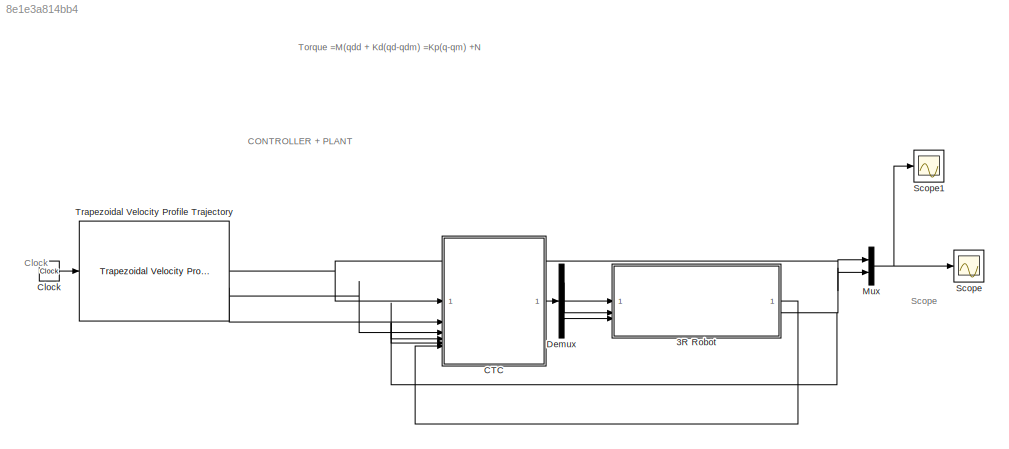
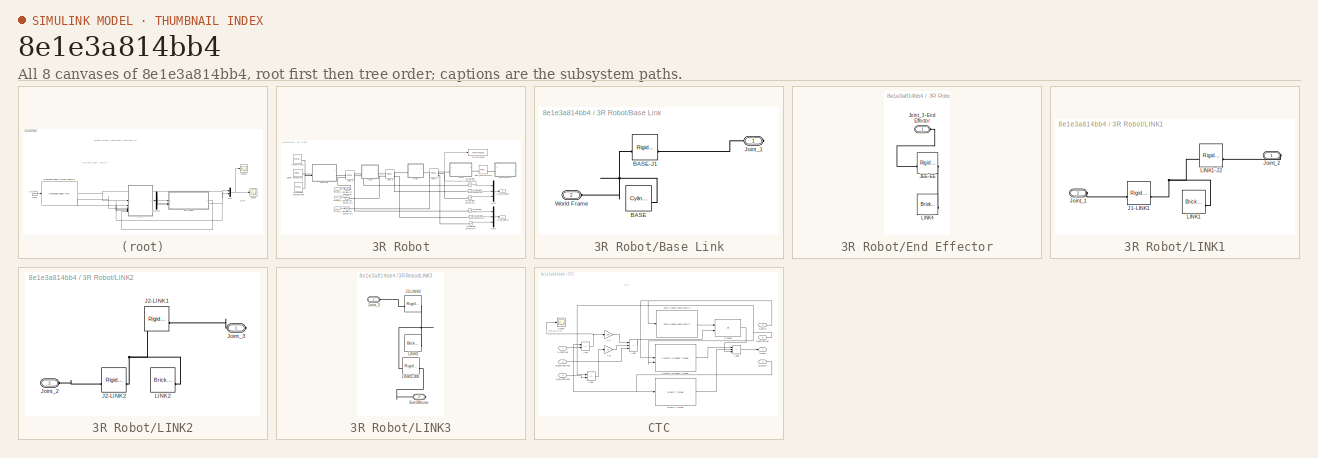
[diagram: thumbnail index - all 8 canvases of the model, root first then tree order]
MODEL slx_8e1e3a814bb4
KIND model
CONFIG AbsTol = auto
CONFIG EnableMultiTasking = off
CONFIG FixedStep = auto
CONFIG MaxStep = auto
CONFIG MinStep = auto
CONFIG RelTol = 1e-3
CONFIG SampleTimeConstraint = Unconstrained
CONFIG SolverName = VariableStepAuto
CONFIG StartTime = 0.0
CONFIG StopTime = 1
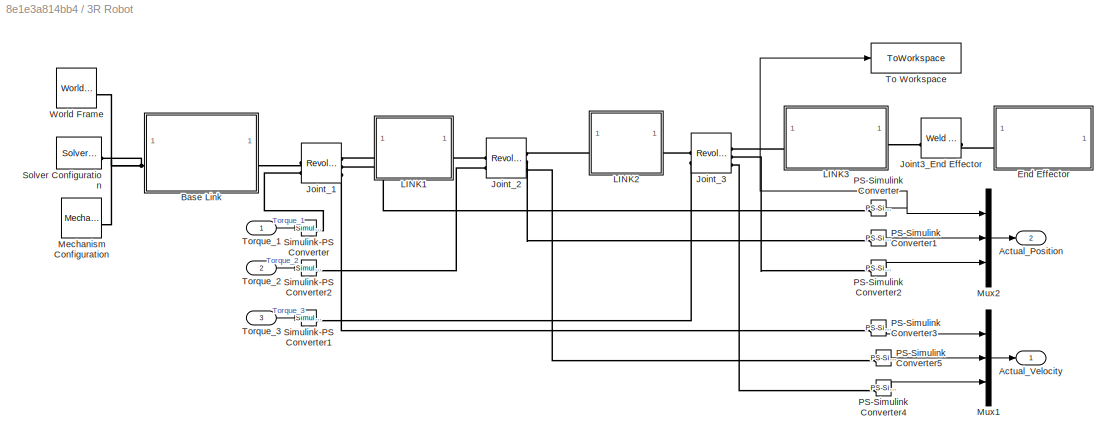
BLOCK [SubSystem] 3R Robot
BLOCK [Outport] 3R Robot/Actual_Position
  Port = 2
BLOCK [Outport] 3R Robot/Actual_Velocity
BLOCK [SubSystem] 3R Robot/Base Link
BLOCK [Reference] 3R Robot/Base Link/BASE  REF=sm_lib/Body Elements/Cylindrical Solid
  SourceBlock = sm_lib/Body Elements/Cylindrical Solid
  SourceType = Cylindrical Solid
BLOCK [Reference] 3R Robot/Base Link/BASE-J1  REF=sm_lib/Frames and
Transforms/Rigid
Transform
  SourceBlock = sm_lib/Frames and\nTransforms/Rigid\nTransform
  SourceType = Rigid\nTransform
BLOCK [PMIOPort] 3R Robot/Base Link/Joint_1
  Side = Right
BLOCK [PMIOPort] 3R Robot/Base Link/World Frame
  Port = 2
  Side = Left
BLOCK [SubSystem] 3R Robot/End Effector
BLOCK [Reference] 3R Robot/End Effector/JEE-EE  REF=sm_lib/Frames and
Transforms/Rigid
Transform
  SourceBlock = sm_lib/Frames and\nTransforms/Rigid\nTransform
  SourceType = Rigid\nTransform
BLOCK [PMIOPort] 3R Robot/End Effector/Joint_3-End Effector
  Side = Left
BLOCK [Reference] 3R Robot/End Effector/LINK4  REF=sm_lib/Body Elements/Brick Solid
  SourceBlock = sm_lib/Body Elements/Brick Solid
  SourceType = Brick Solid
BLOCK [Reference] 3R Robot/Joint3_End Effector  REF=sm_lib/Joints/Weld Joint
  SourceBlock = sm_lib/Joints/Weld Joint
  SourceType = Weld Joint
BLOCK [Reference] 3R Robot/Joint_1  REF=sm_lib/Joints/Revolute Joint
  SourceBlock = sm_lib/Joints/Revolute Joint
  SourceType = Revolute Joint
BLOCK [Reference] 3R Robot/Joint_2  REF=sm_lib/Joints/Revolute Joint
  SourceBlock = sm_lib/Joints/Revolute Joint
  SourceType = Revolute Joint
BLOCK [Reference] 3R Robot/Joint_3  REF=sm_lib/Joints/Revolute Joint
  SourceBlock = sm_lib/Joints/Revolute Joint
  SourceType = Revolute Joint
BLOCK [SubSystem] 3R Robot/LINK1
BLOCK [Reference] 3R Robot/LINK1/J1-LINK1  REF=sm_lib/Frames and
Transforms/Rigid
Transform
  SourceBlock = sm_lib/Frames and\nTransforms/Rigid\nTransform
  SourceType = Rigid\nTransform
BLOCK [PMIOPort] 3R Robot/LINK1/Joint_1
  Port = 2
  Side = Left
BLOCK [PMIOPort] 3R Robot/LINK1/Joint_2
  Side = Right
BLOCK [Reference] 3R Robot/LINK1/LINK1  REF=sm_lib/Body Elements/Brick Solid
  SourceBlock = sm_lib/Body Elements/Brick Solid
  SourceType = Brick Solid
BLOCK [Reference] 3R Robot/LINK1/LINK1-J2  REF=sm_lib/Frames and
Transforms/Rigid
Transform
  NameLocation = top
  SourceBlock = sm_lib/Frames and\nTransforms/Rigid\nTransform
  SourceType = Rigid\nTransform
BLOCK [SubSystem] 3R Robot/LINK2
BLOCK [Reference] 3R Robot/LINK2/J2-LINK1  REF=sm_lib/Frames and
Transforms/Rigid
Transform
  SourceBlock = sm_lib/Frames and\nTransforms/Rigid\nTransform
  SourceType = Rigid\nTransform
BLOCK [Reference] 3R Robot/LINK2/J2-LINK2  REF=sm_lib/Frames and
Transforms/Rigid
Transform
  SourceBlock = sm_lib/Frames and\nTransforms/Rigid\nTransform
  SourceType = Rigid\nTransform
BLOCK [PMIOPort] 3R Robot/LINK2/Joint_2
  Port = 2
  Side = Left
BLOCK [PMIOPort] 3R Robot/LINK2/Joint_3
  Side = Right
BLOCK [Reference] 3R Robot/LINK2/LINK2  REF=sm_lib/Body Elements/Brick Solid
  SourceBlock = sm_lib/Body Elements/Brick Solid
  SourceType = Brick Solid
BLOCK [SubSystem] 3R Robot/LINK3
BLOCK [PMIOPort] 3R Robot/LINK3/End Effector
  Port = 2
  Side = Right
BLOCK [Reference] 3R Robot/LINK3/J3-LINK3  REF=sm_lib/Frames and
Transforms/Rigid
Transform
  SourceBlock = sm_lib/Frames and\nTransforms/Rigid\nTransform
  SourceType = Rigid\nTransform
BLOCK [PMIOPort] 3R Robot/LINK3/Joint_3
  Side = Left
BLOCK [Reference] 3R Robot/LINK3/LINK3  REF=sm_lib/Body Elements/Brick Solid
  SourceBlock = sm_lib/Body Elements/Brick Solid
  SourceType = Brick Solid
BLOCK [Reference] 3R Robot/LINK3/LINK3-JEE  REF=sm_lib/Frames and
Transforms/Rigid
Transform
  SourceBlock = sm_lib/Frames and\nTransforms/Rigid\nTransform
  SourceType = Rigid\nTransform
BLOCK [Reference] 3R Robot/Mechanism Configuration  REF=sm_lib/Utilities/Mechanism
Configuration
  SourceBlock = sm_lib/Utilities/Mechanism\nConfiguration
  SourceType = Mechanism\nConfiguration
BLOCK [Mux] 3R Robot/Mux1
  DisplayOption = bar
  Inputs = 3
BLOCK [Mux] 3R Robot/Mux2
  DisplayOption = bar
  Inputs = 3
BLOCK [Reference] 3R Robot/PS-Simulink Converter  REF=nesl_utility/PS-Simulink
Converter
  SourceBlock = nesl_utility/PS-Simulink\nConverter
  SourceType = PS-Simulink\nConverter
BLOCK [Reference] 3R Robot/PS-Simulink Converter1  REF=nesl_utility/PS-Simulink
Converter
  SourceBlock = nesl_utility/PS-Simulink\nConverter
  SourceType = PS-Simulink\nConverter
BLOCK [Reference] 3R Robot/PS-Simulink Converter2  REF=nesl_utility/PS-Simulink
Converter
  SourceBlock = nesl_utility/PS-Simulink\nConverter
  SourceType = PS-Simulink\nConverter
BLOCK [Reference] 3R Robot/PS-Simulink Converter3  REF=nesl_utility/PS-Simulink
Converter
  SourceBlock = nesl_utility/PS-Simulink\nConverter
  SourceType = PS-Simulink\nConverter
BLOCK [Reference] 3R Robot/PS-Simulink Converter4  REF=nesl_utility/PS-Simulink
Converter
  SourceBlock = nesl_utility/PS-Simulink\nConverter
  SourceType = PS-Simulink\nConverter
BLOCK [Reference] 3R Robot/PS-Simulink Converter5  REF=nesl_utility/PS-Simulink
Converter
  SourceBlock = nesl_utility/PS-Simulink\nConverter
  SourceType = PS-Simulink\nConverter
BLOCK [Reference] 3R Robot/Simulink-PS Converter  REF=nesl_utility/Simulink-PS
Converter
  SourceBlock = nesl_utility/Simulink-PS\nConverter
  SourceType = Simulink-PS\nConverter
BLOCK [Reference] 3R Robot/Simulink-PS Converter1  REF=nesl_utility/Simulink-PS
Converter
  SourceBlock = nesl_utility/Simulink-PS\nConverter
  SourceType = Simulink-PS\nConverter
BLOCK [Reference] 3R Robot/Simulink-PS Converter2  REF=nesl_utility/Simulink-PS
Converter
  SourceBlock = nesl_utility/Simulink-PS\nConverter
  SourceType = Simulink-PS\nConverter
BLOCK [Reference] 3R Robot/Solver Configuration  REF=nesl_utility/Solver
Configuration
  SourceBlock = nesl_utility/Solver\nConfiguration
  SourceType = Solver\nConfiguration
BLOCK [ToWorkspace] 3R Robot/To Workspace
  FixptAsFi = on
  MaxDataPoints = inf
  SampleTime = -1
  SaveFormat = Timeseries
  VariableName = Actual1
BLOCK [Inport] 3R Robot/Torque_1
BLOCK [Inport] 3R Robot/Torque_2
  Port = 2
BLOCK [Inport] 3R Robot/Torque_3
  Port = 3
BLOCK [Reference] 3R Robot/World Frame  REF=sm_lib/Frames and
Transforms/World Frame
  SourceBlock = sm_lib/Frames and\nTransforms/World Frame
  SourceType = World Frame
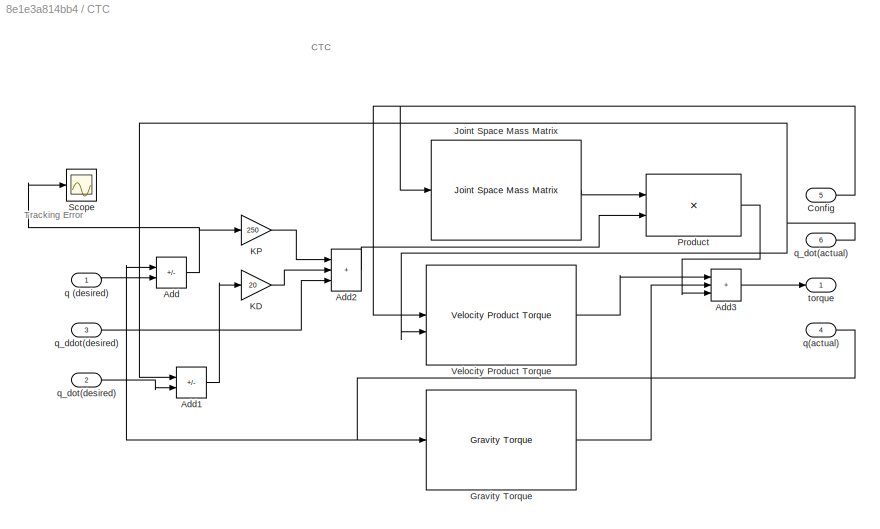
BLOCK [SubSystem] CTC
BLOCK [Sum] CTC/Add
  IconShape = rectangular
  Inputs = -+
BLOCK [Sum] CTC/Add1
  IconShape = rectangular
  Inputs = -+
BLOCK [Sum] CTC/Add2
  IconShape = rectangular
  Inputs = +++
BLOCK [Sum] CTC/Add3
  IconShape = rectangular
  Inputs = +++
BLOCK [Inport] CTC/Config
  Port = 5
BLOCK [Reference] CTC/Gravity Torque  REF=robotmaniplib/Gravity Torque
  SourceBlock = robotmaniplib/Gravity Torque
  SourceType = Gravity Torque
BLOCK [Reference] CTC/Joint Space Mass Matrix  REF=robotmaniplib/Joint Space Mass Matrix
  SourceBlock = robotmaniplib/Joint Space Mass Matrix
  SourceType = Joint Space Mass Matrix
BLOCK [Gain] CTC/KD
  Gain = 20
BLOCK [Gain] CTC/KP
  Gain = 250
BLOCK [Product] CTC/Product
  Multiplication = Matrix(*)
BLOCK [Scope] CTC/Scope
  Floating = off
  NumInputPorts = 1
  ScopeSpecificationString = Simulink.scopes.TimeScopeBlockCfg('CurrentConfiguration', extmgr.ConfigurationSet(extmgr.Configuration('Core','General UI',true,'DisplayFullSourceName',true),extmgr.Configuration('Core','Source UI',true),extmgr.Configuration('Sources','WiredSimulink',true,'DataLogging',true,'DataLoggingSaveFormat','Structure'),extmgr.Configuration('Visuals','Time Domain',true,'SerializedDisplays',{struct('MinYLimR...<+1535ch>
BLOCK [Reference] CTC/Velocity Product Torque  REF=robotmaniplib/Velocity Product Torque
  SourceBlock = robotmaniplib/Velocity Product Torque
  SourceType = Velocity Product Torque
BLOCK [Inport] CTC/q (desired)
BLOCK [Inport] CTC/q(actual)
  Port = 4
BLOCK [Inport] CTC/q_ddot(desired)
  Port = 3
BLOCK [Inport] CTC/q_dot(actual)
  Port = 6
BLOCK [Inport] CTC/q_dot(desired)
  Port = 2
BLOCK [Outport] CTC/torque
BLOCK [Clock] Clock
  Decimation = 1
BLOCK [Demux] Demux
  Outputs = 3
BLOCK [Mux] Mux
  DisplayOption = bar
  Inputs = 2
BLOCK [Scope] Scope
  Floating = off
  NumInputPorts = 1
  ScopeSpecificationString = Simulink.scopes.TimeScopeBlockCfg('CurrentConfiguration', extmgr.ConfigurationSet(extmgr.Configuration('Core','General UI',true),extmgr.Configuration('Core','Source UI',true),extmgr.Configuration('Sources','WiredSimulink',true,'DataLogging',true,'DataLoggingVariableName','Actual','DataLoggingSaveFormat','Structure'),extmgr.Configuration('Visuals','Time Domain',true,'SerializedDisplays',{struct('Mi...<+1829ch>
BLOCK [Scope] Scope1
  Floating = off
  NumInputPorts = 1
  ScopeSpecificationString = Simulink.scopes.TimeScopeBlockCfg('CurrentConfiguration', extmgr.ConfigurationSet(extmgr.Configuration('Core','General UI',true),extmgr.Configuration('Core','Source UI',true),extmgr.Configuration('Sources','WiredSimulink',true,'DataLoggingVariableName','ScopeData1'),extmgr.Configuration('Visuals','Time Domain',true,'SerializedDisplays',{struct('MinYLimReal','-0.3','MaxYLimReal','0.7','YLabelReal',...<+1674ch>
BLOCK [Reference] Trapezoidal Velocity Profile Trajectory  REF=robotcorelib/Trapezoidal Velocity Profile Trajectory
  LibrarySourceBlock = robotutilslib/Trapezoidal Velocity Profile Trajectory
  SourceBlock = robotcorelib/Trapezoidal Velocity Profile Trajectory
  SourceType = robotics.slcore.internal.block.TrapVelTrajSys
ANNOTATION (root): Torque =M(qdd + Kd(qd-qdm) =Kp(q-qm) +N
ANNOTATION (root): CONTROLLER + PLANT
ANNOTATION (root): Clock
ANNOTATION (root): Scope
ANNOTATION CTC: CTC
ANNOTATION CTC: Tracking Error
LINE 3R Robot/Mux1:1 -> 3R Robot/Actual_Velocity:1
LINE 3R Robot/Mux2:1 -> 3R Robot/Actual_Position:1
LINE 3R Robot/PS-Simulink Converter1:1 -> 3R Robot/Mux2:2
LINE 3R Robot/PS-Simulink Converter2:1 -> 3R Robot/Mux2:3
LINE 3R Robot/PS-Simulink Converter3:1 -> 3R Robot/Mux1:1
LINE 3R Robot/PS-Simulink Converter4:1 -> 3R Robot/Mux1:3
LINE 3R Robot/PS-Simulink Converter5:1 -> 3R Robot/Mux1:2
NET 3R Robot/PS-Simulink Converter:1 -> 3R Robot/Mux2:1, 3R Robot/To Workspace:1
LINE 3R Robot/Torque_1:1 -> 3R Robot/Simulink-PS Converter:1
LINE 3R Robot/Torque_2:1 -> 3R Robot/Simulink-PS Converter2:1
LINE 3R Robot/Torque_3:1 -> 3R Robot/Simulink-PS Converter1:1
LINE 3R Robot:1 -> CTC:6
NET 3R Robot:2 -> CTC:4, CTC:5, Mux:2
LINE CTC/Add1:1 -> CTC/KD:1
LINE CTC/Add2:1 -> CTC/Product:2
LINE CTC/Add3:1 -> CTC/torque:1
NET CTC/Add:1 -> CTC/KP:1, CTC/Scope:1
NET CTC/Config:1 -> CTC/Joint Space Mass Matrix:1, CTC/Velocity Product Torque:1
LINE CTC/Gravity Torque:1 -> CTC/Add3:2
LINE CTC/Joint Space Mass Matrix:1 -> CTC/Product:1
LINE CTC/KD:1 -> CTC/Add2:2
LINE CTC/KP:1 -> CTC/Add2:1
LINE CTC/Product:1 -> CTC/Add3:3
LINE CTC/Velocity Product Torque:1 -> CTC/Add3:1
LINE CTC/q (desired):1 -> CTC/Add:2
NET CTC/q(actual):1 -> CTC/Add:1, CTC/Gravity Torque:1
LINE CTC/q_ddot(desired):1 -> CTC/Add2:3
NET CTC/q_dot(actual):1 -> CTC/Add1:1, CTC/Velocity Product Torque:2
LINE CTC/q_dot(desired):1 -> CTC/Add1:2
LINE CTC:1 -> Demux:1
LINE Clock:1 -> Trapezoidal Velocity Profile Trajectory:1
LINE Demux:1 -> 3R Robot:1
LINE Demux:2 -> 3R Robot:2
LINE Demux:3 -> 3R Robot:3
NET Mux:1 -> Scope1:1, Scope:1
NET Trapezoidal Velocity Profile Trajectory:1 -> CTC:1, Mux:1
LINE Trapezoidal Velocity Profile Trajectory:2 -> CTC:2
LINE Trapezoidal Velocity Profile Trajectory:3 -> CTC:3
PNET net1: 3R Robot/Base Link/BASE-J1:LConn1 -- 3R Robot/Base Link/BASE:RConn1 -- 3R Robot/Base Link/World Frame:RConn1
PLINE 3R Robot/Base Link/BASE-J1:RConn1 -- 3R Robot/Base Link/Joint_1:RConn1
PNET net2: 3R Robot/Base Link:LConn1 -- 3R Robot/Mechanism Configuration:RConn1 -- 3R Robot/Solver Configuration:RConn1 -- 3R Robot/World Frame:RConn1
PLINE 3R Robot/Base Link:RConn1 -- 3R Robot/Joint_1:LConn1
PLINE 3R Robot/End Effector/JEE-EE:LConn1 -- 3R Robot/End Effector/Joint_3-End Effector:RConn1
PLINE 3R Robot/End Effector/JEE-EE:RConn1 -- 3R Robot/End Effector/LINK4:RConn1
PLINE 3R Robot/End Effector:LConn1 -- 3R Robot/Joint3_End Effector:RConn1
PLINE 3R Robot/Joint3_End Effector:LConn1 -- 3R Robot/LINK3:RConn1
PLINE 3R Robot/Joint_1:LConn2 -- 3R Robot/Simulink-PS Converter:RConn1
PLINE 3R Robot/Joint_1:RConn1 -- 3R Robot/LINK1:LConn1
PLINE 3R Robot/Joint_1:RConn2 -- 3R Robot/PS-Simulink Converter:LConn1
PLINE 3R Robot/Joint_1:RConn3 -- 3R Robot/PS-Simulink Converter3:LConn1
PLINE 3R Robot/Joint_2:LConn1 -- 3R Robot/LINK1:RConn1
PLINE 3R Robot/Joint_2:LConn2 -- 3R Robot/Simulink-PS Converter2:RConn1
PLINE 3R Robot/Joint_2:RConn1 -- 3R Robot/LINK2:LConn1
PLINE 3R Robot/Joint_2:RConn2 -- 3R Robot/PS-Simulink Converter1:LConn1
PLINE 3R Robot/Joint_2:RConn3 -- 3R Robot/PS-Simulink Converter5:LConn1
PLINE 3R Robot/Joint_3:LConn1 -- 3R Robot/LINK2:RConn1
PLINE 3R Robot/Joint_3:LConn2 -- 3R Robot/Simulink-PS Converter1:RConn1
PLINE 3R Robot/Joint_3:RConn1 -- 3R Robot/LINK3:LConn1
PLINE 3R Robot/Joint_3:RConn2 -- 3R Robot/PS-Simulink Converter2:LConn1
PLINE 3R Robot/Joint_3:RConn3 -- 3R Robot/PS-Simulink Converter4:LConn1
PLINE 3R Robot/LINK1/J1-LINK1:LConn1 -- 3R Robot/LINK1/Joint_1:RConn1
PNET net3: 3R Robot/LINK1/J1-LINK1:RConn1 -- 3R Robot/LINK1/LINK1-J2:LConn1 -- 3R Robot/LINK1/LINK1:RConn1
PLINE 3R Robot/LINK1/Joint_2:RConn1 -- 3R Robot/LINK1/LINK1-J2:RConn1
PNET net4: 3R Robot/LINK2/J2-LINK1:LConn1 -- 3R Robot/LINK2/J2-LINK2:RConn1 -- 3R Robot/LINK2/LINK2:RConn1
PLINE 3R Robot/LINK2/J2-LINK1:RConn1 -- 3R Robot/LINK2/Joint_3:RConn1
PLINE 3R Robot/LINK2/J2-LINK2:LConn1 -- 3R Robot/LINK2/Joint_2:RConn1
PLINE 3R Robot/LINK3/End Effector:RConn1 -- 3R Robot/LINK3/LINK3-JEE:RConn1
PLINE 3R Robot/LINK3/J3-LINK3:LConn1 -- 3R Robot/LINK3/Joint_3:RConn1
PNET net5: 3R Robot/LINK3/J3-LINK3:RConn1 -- 3R Robot/LINK3/LINK3-JEE:LConn1 -- 3R Robot/LINK3/LINK3:RConn1
note: NET lines group one-source signal fan-out (src -> all destinations, sorted); 1:1 wires keep LINE; PNET lines group multi-terminal physical nets as a canonical sorted terminal list (undirected conserving connections); 2-terminal nets keep the pairwise PLINE form
